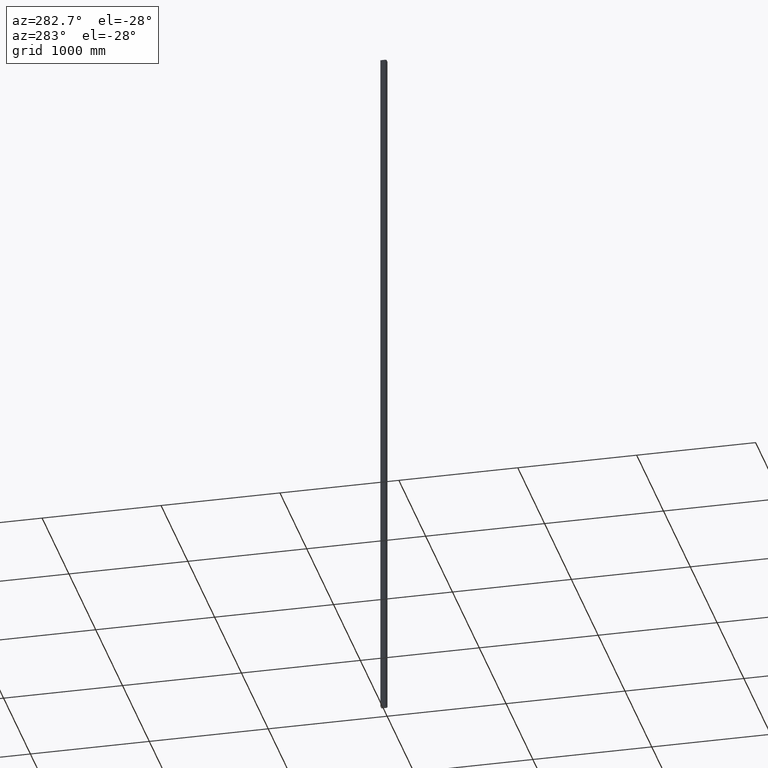
[diagram: clean part render]
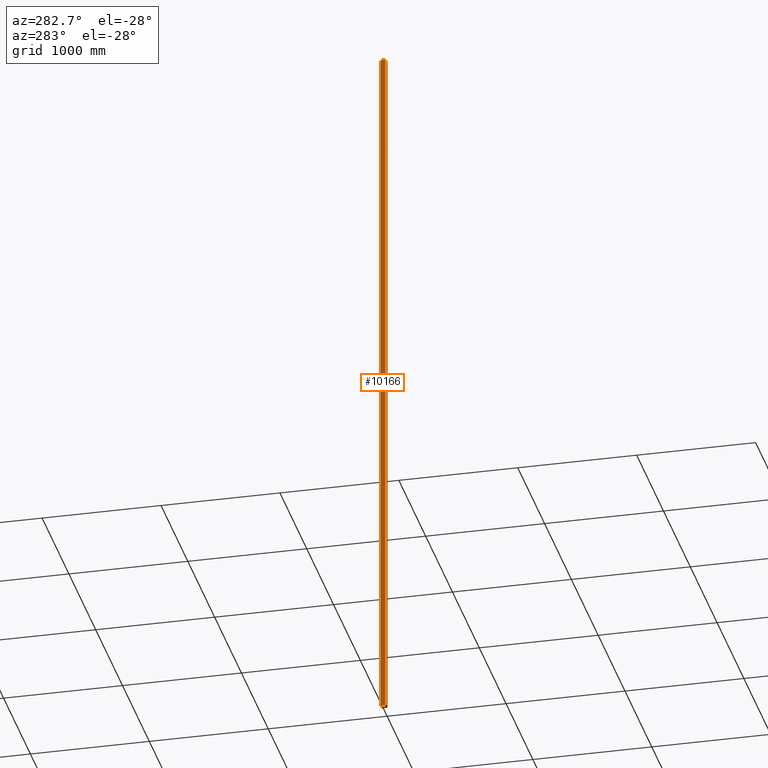
[diagram: same view with one face highlighted and labeled with its STEP entity id]
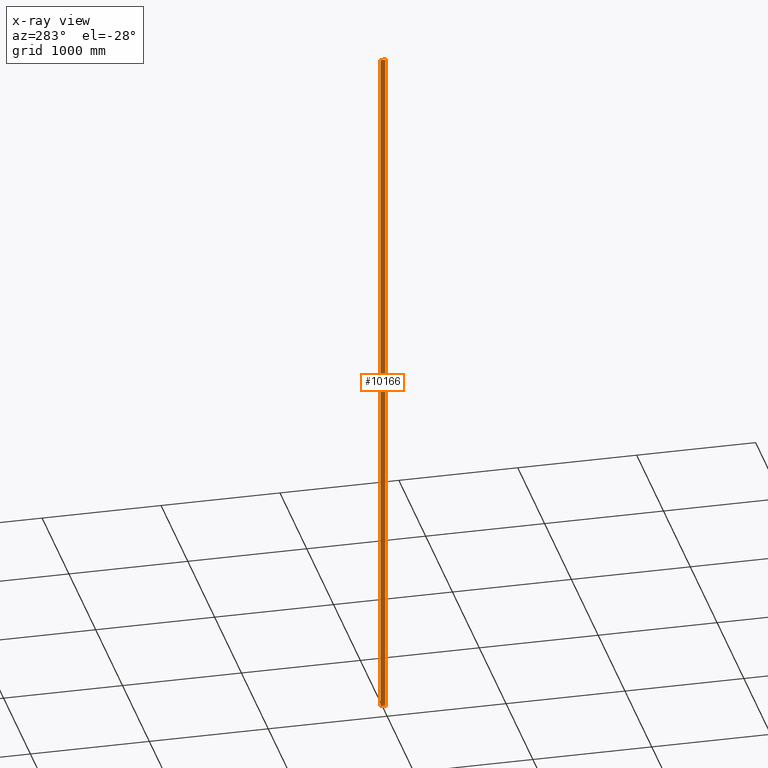
[diagram: x-ray of the same camera — body ghosted, the highlighted face saturated]
A machine part, auxiliary view. The second image highlights one B-rep face of the part: STEP entity #10166.
The next image is the same camera in x-ray: the body ghosted, the highlighted face saturated — about 0% of this face is hidden behind the body in this view.
In plain terms, the highlighted planar face has unit normal (-1, 0, 0).
Its self-contained STEP definition (entity closure, byte-faithful):
#179 = CARTESIAN_POINT ( 'NONE',  ( -20.99999999999999645, 49.99999999999998579, -3000.000000000000000 ) ) ;
#366 = CARTESIAN_POINT ( 'NONE',  ( -20.99999999999999645, 49.99999999999998579, 3000.000000000000000 ) ) ;
#633 = VERTEX_POINT ( 'NONE', #3183 ) ;
#921 = EDGE_CURVE ( 'NONE', #3129, #5250, #9638, .T. ) ;
#1035 = FACE_OUTER_BOUND ( 'NONE', #11079, .T. ) ;
#1737 = CARTESIAN_POINT ( 'NONE',  ( -20.99999999999999645, 49.99999999999998579, -3000.000000000000000 ) ) ;
#1868 = DIRECTION ( 'NONE',  ( -0.000000000000000000, -0.000000000000000000, -1.000000000000000000 ) ) ;
#3050 = EDGE_CURVE ( 'NONE', #12014, #5250, #6834, .T. ) ;
#3129 = VERTEX_POINT ( 'NONE', #11439 ) ;
#3158 = CARTESIAN_POINT ( 'NONE',  ( -21.00000000000000000, 10.96601461306008574, -3000.000000000000000 ) ) ;
#3183 = CARTESIAN_POINT ( 'NONE',  ( -21.00000000000000000, 10.96601461306008574, 3000.000000000000000 ) ) ;
#3231 = EDGE_CURVE ( 'NONE', #633, #12014, #5006, .T. ) ;
#4230 = ORIENTED_EDGE ( 'NONE', *, *, #3050, .F. ) ;
#4309 = EDGE_CURVE ( 'NONE', #633, #3129, #10066, .T. ) ;
#4633 = DIRECTION ( 'NONE',  ( 0.000000000000000000, 1.000000000000000000, 0.000000000000000000 ) ) ;
#5001 = DIRECTION ( 'NONE',  ( -0.000000000000000000, -0.000000000000000000, -1.000000000000000000 ) ) ;
#5006 = LINE ( 'NONE', #5864, #5917 ) ;
#5208 = DIRECTION ( 'NONE',  ( -1.000000000000000000, 0.000000000000000000, 0.000000000000000000 ) ) ;
#5223 = CARTESIAN_POINT ( 'NONE',  ( -20.99999999999999645, 49.99999999999998579, 3000.000000000000000 ) ) ;
#5250 = VERTEX_POINT ( 'NONE', #179 ) ;
#5864 = CARTESIAN_POINT ( 'NONE',  ( -21.00000000000000000, 10.96601461306008574, 3000.000000000000000 ) ) ;
#5917 = VECTOR ( 'NONE', #1868, 1000.000000000000000 ) ;
#6065 = CARTESIAN_POINT ( 'NONE',  ( -20.99999999999999645, 49.99999999999998579, 3000.000000000000000 ) ) ;
#6834 = LINE ( 'NONE', #1737, #12095 ) ;
#7428 = VECTOR ( 'NONE', #9153, 1000.000000000000000 ) ;
#8298 = ORIENTED_EDGE ( 'NONE', *, *, #921, .T. ) ;
#8550 = VECTOR ( 'NONE', #5001, 1000.000000000000000 ) ;
#8766 = ORIENTED_EDGE ( 'NONE', *, *, #4309, .T. ) ;
#9153 = DIRECTION ( 'NONE',  ( 0.000000000000000000, 1.000000000000000000, 0.000000000000000000 ) ) ;
#9638 = LINE ( 'NONE', #6065, #8550 ) ;
#10066 = LINE ( 'NONE', #5223, #7428 ) ;
#10166 = ADVANCED_FACE ( 'NONE', ( #1035 ), #10192, .T. ) ;
#10192 = PLANE ( 'NONE',  #11592 ) ;
#11079 = EDGE_LOOP ( 'NONE', ( #4230, #12167, #8766, #8298 ) ) ;
#11111 = DIRECTION ( 'NONE',  ( 0.000000000000000000, 0.000000000000000000, 1.000000000000000000 ) ) ;
#11439 = CARTESIAN_POINT ( 'NONE',  ( -20.99999999999999645, 49.99999999999998579, 3000.000000000000000 ) ) ;
#11592 = AXIS2_PLACEMENT_3D ( 'NONE', #366, #5208, #11111 ) ;
#12014 = VERTEX_POINT ( 'NONE', #3158 ) ;
#12095 = VECTOR ( 'NONE', #4633, 1000.000000000000000 ) ;
#12167 = ORIENTED_EDGE ( 'NONE', *, *, #3231, .F. ) ;